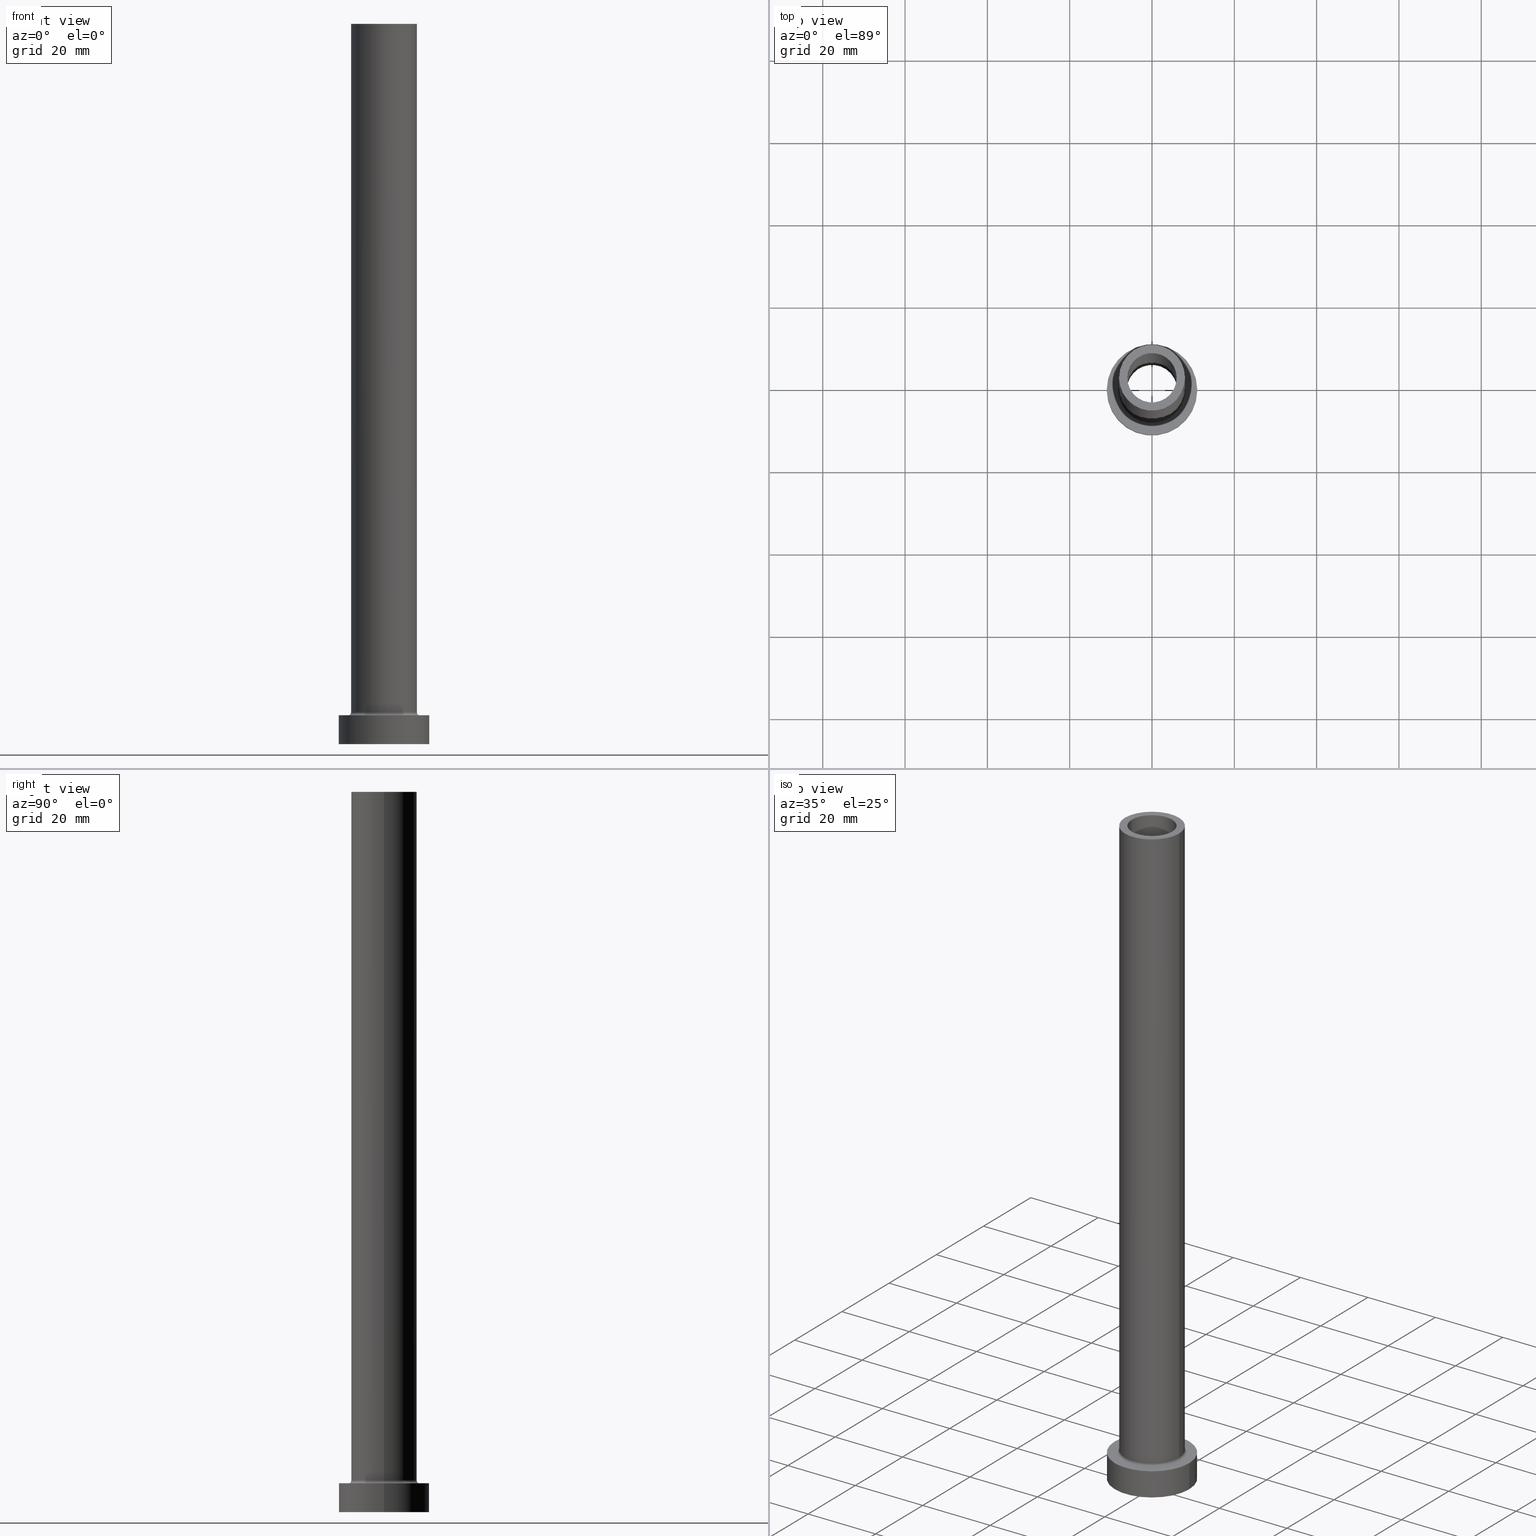
[diagram: canonical four-view strip — front | top / right | iso, engineering-drawing reading convention]
A machine part, canonical four-view strip (front | top / right | iso — engineering-drawing reading convention). The complete STEP part file that produces these views, byte-faithful:
ISO-10303-21;
HEADER;
FILE_DESCRIPTION (( 'STEP AP203' ),
    '1' );
FILE_NAME ('0280.STEP',
    '2023-02-13T07:42:17',
    ( '' ),
    ( '' ),
    'SwSTEP 2.0',
    'SolidWorks 2019',
    '' );
FILE_SCHEMA (( 'CONFIG_CONTROL_DESIGN' ));
ENDSEC;

DATA;
#1 = ORIENTED_EDGE ( 'NONE', *, *, #388, .T. ) ;
#2 = EDGE_CURVE ( 'NONE', #266, #155, #386, .T. ) ;
#3 = AXIS2_PLACEMENT_3D ( 'NONE', #35, #312, #212 ) ;
#4 = CIRCLE ( 'NONE', #304, 0.7000000000000000666 ) ;
#5 = SECURITY_CLASSIFICATION ( '', '', #391 ) ;
#6 = ORIENTED_EDGE ( 'NONE', *, *, #67, .F. ) ;
#7 = CIRCLE ( 'NONE', #276, 0.6999999999999992895 ) ;
#8 = ORIENTED_EDGE ( 'NONE', *, *, #94, .T. ) ;
#9 = VERTEX_POINT ( 'NONE', #226 ) ;
#10 = ORIENTED_EDGE ( 'NONE', *, *, #458, .F. ) ;
#11 = CARTESIAN_POINT ( 'NONE',  ( -6.000000000000000888, 0.000000000000000000, 130.0000000000000000 ) ) ;
#12 = DIRECTION ( 'NONE',  ( 0.000000000000000000, 0.000000000000000000, 1.000000000000000000 ) ) ;
#13 = CARTESIAN_POINT ( 'NONE',  ( 8.699999999999999289, 0.000000000000000000, 7.000000000000006217 ) ) ;
#14 = PRODUCT ( '0280', '0280', '', ( #98 ) ) ;
#15 = ORIENTED_EDGE ( 'NONE', *, *, #260, .T. ) ;
#16 = APPLICATION_CONTEXT ( 'configuration controlled 3d designs of mechanical parts and assemblies' ) ;
#17 = CARTESIAN_POINT ( 'NONE',  ( 0.000000000000000000, 0.000000000000000000, 7.000000000000000000 ) ) ;
#18 = DIRECTION ( 'NONE',  ( -1.000000000000000000, 1.224646799147353207E-16, 0.000000000000000000 ) ) ;
#19 = DIRECTION ( 'NONE',  ( 0.000000000000000000, 0.000000000000000000, 1.000000000000000000 ) ) ;
#20 = EDGE_CURVE ( 'NONE', #51, #336, #442, .T. ) ;
#21 = FACE_OUTER_BOUND ( 'NONE', #437, .T. ) ;
#22 =( NAMED_UNIT ( * ) PLANE_ANGLE_UNIT ( ) SI_UNIT ( $, .RADIAN. ) );
#23 = DIRECTION ( 'NONE',  ( 1.000000000000000000, 0.000000000000000000, 0.000000000000000000 ) ) ;
#24 = ADVANCED_FACE ( 'NONE', ( #198 ), #412, .T. ) ;
#25 = CARTESIAN_POINT ( 'NONE',  ( 0.000000000000000000, 0.000000000000000000, 7.700000000000012612 ) ) ;
#26 = CC_DESIGN_PERSON_AND_ORGANIZATION_ASSIGNMENT ( #109, #453, ( #5 ) ) ;
#27 = DIRECTION ( 'NONE',  ( -0.000000000000000000, -0.000000000000000000, -1.000000000000000000 ) ) ;
#28 = PERSON_AND_ORGANIZATION ( #37, #313 ) ;
#29 = FACE_OUTER_BOUND ( 'NONE', #222, .T. ) ;
#30 = APPROVAL_STATUS ( 'not_yet_approved' ) ;
#31 = CARTESIAN_POINT ( 'NONE',  ( 0.000000000000000000, 0.000000000000000000, 147.3948268171890845 ) ) ;
#32 = APPROVAL_STATUS ( 'not_yet_approved' ) ;
#33 = AXIS2_PLACEMENT_3D ( 'NONE', #156, #439, #85 ) ;
#34 = DIRECTION ( 'NONE',  ( 1.000000000000000000, 0.000000000000000000, -0.000000000000000000 ) ) ;
#35 = CARTESIAN_POINT ( 'NONE',  ( 0.000000000000000000, 0.000000000000000000, 7.700000000000012612 ) ) ;
#36 = DATE_AND_TIME ( #285, #390 ) ;
#37 = PERSON ( 'NEUR�EN�', 'NEUR�EN�', 'NEUR�EN�', ('NEUR�EN�'), ('NEUR�EN�'), ('NEUR�EN�') ) ;
#38 = ADVANCED_FACE ( 'NONE', ( #371, #21 ), #259, .T. ) ;
#39 = CC_DESIGN_DATE_AND_TIME_ASSIGNMENT ( #140, #450, ( #5 ) ) ;
#40 = APPROVAL_PERSON_ORGANIZATION ( #99, #247, #65 ) ;
#41 = EDGE_LOOP ( 'NONE', ( #370, #197 ) ) ;
#42 = LINE ( 'NONE', #428, #432 ) ;
#43 = ORIENTED_EDGE ( 'NONE', *, *, #60, .T. ) ;
#44 = ORIENTED_EDGE ( 'NONE', *, *, #105, .T. ) ;
#45 = EDGE_LOOP ( 'NONE', ( #369, #339 ) ) ;
#46 = CARTESIAN_POINT ( 'NONE',  ( 0.000000000000000000, 0.000000000000000000, 175.0000000000000284 ) ) ;
#47 = CC_DESIGN_APPROVAL ( #415, ( #5 ) ) ;
#48 = CIRCLE ( 'NONE', #457, 8.000000000000000000 ) ;
#49 = ORIENTED_EDGE ( 'NONE', *, *, #429, .T. ) ;
#50 = DIRECTION ( 'NONE',  ( 1.000000000000000000, 0.000000000000000000, 0.000000000000000000 ) ) ;
#51 = VERTEX_POINT ( 'NONE', #11 ) ;
#52 = CARTESIAN_POINT ( 'NONE',  ( 0.000000000000000000, 0.000000000000000000, 130.0000000000000000 ) ) ;
#53 = ORIENTED_EDGE ( 'NONE', *, *, #90, .T. ) ;
#54 = EDGE_CURVE ( 'NONE', #163, #155, #161, .T. ) ;
#55 = DIRECTION ( 'NONE',  ( 1.000000000000000000, 0.000000000000000000, 0.000000000000000000 ) ) ;
#56 = AXIS2_PLACEMENT_3D ( 'NONE', #451, #359, #97 ) ;
#57 = AXIS2_PLACEMENT_3D ( 'NONE', #248, #252, #243 ) ;
#58 = VECTOR ( 'NONE', #399, 1000.000000000000000 ) ;
#59 = CARTESIAN_POINT ( 'NONE',  ( -6.150000000000000355, 0.000000000000000000, 147.3948268171890845 ) ) ;
#60 = EDGE_CURVE ( 'NONE', #120, #9, #88, .T. ) ;
#61 = CARTESIAN_POINT ( 'NONE',  ( 6.000000000000000888, 7.347880794884120722E-16, 130.0000000000000000 ) ) ;
#62 = DIRECTION ( 'NONE',  ( -1.000000000000000000, 0.000000000000000000, 0.000000000000000000 ) ) ;
#63 = CYLINDRICAL_SURFACE ( 'NONE', #195, 8.000000000000000000 ) ;
#64 = CIRCLE ( 'NONE', #180, 11.00000000000000000 ) ;
#65 = APPROVAL_ROLE ( '' ) ;
#66 = APPROVAL_ROLE ( '' ) ;
#67 = EDGE_CURVE ( 'NONE', #196, #187, #7, .T. ) ;
#68 = CC_DESIGN_PERSON_AND_ORGANIZATION_ASSIGNMENT ( #455, #215, ( #14 ) ) ;
#69 = CARTESIAN_POINT ( 'NONE',  ( -8.699999999999999289, 1.065442715258197248E-15, 7.000000000000006217 ) ) ;
#70 = VECTOR ( 'NONE', #77, 1000.000000000000000 ) ;
#71 =( GEOMETRIC_REPRESENTATION_CONTEXT ( 3 ) GLOBAL_UNCERTAINTY_ASSIGNED_CONTEXT ( ( #357 ) ) GLOBAL_UNIT_ASSIGNED_CONTEXT ( ( #379, #22, #309 ) ) REPRESENTATION_CONTEXT ( 'NONE', 'WORKASPACE' ) );
#72 = DATE_AND_TIME ( #101, #107 ) ;
#73 = CARTESIAN_POINT ( 'NONE',  ( 0.000000000000000000, 0.000000000000000000, 0.000000000000000000 ) ) ;
#74 = ADVANCED_FACE ( 'NONE', ( #29 ), #63, .T. ) ;
#75 = CC_DESIGN_DATE_AND_TIME_ASSIGNMENT ( #173, #323, ( #381 ) ) ;
#76 = DIRECTION ( 'NONE',  ( 1.000000000000000000, 0.000000000000000000, 0.000000000000000000 ) ) ;
#77 = DIRECTION ( 'NONE',  ( -0.000000000000000000, -0.000000000000000000, -1.000000000000000000 ) ) ;
#78 = AXIS2_PLACEMENT_3D ( 'NONE', #73, #205, #34 ) ;
#79 = CIRCLE ( 'NONE', #267, 8.000000000000000000 ) ;
#80 = ORIENTED_EDGE ( 'NONE', *, *, #449, .T. ) ;
#81 = ORIENTED_EDGE ( 'NONE', *, *, #324, .T. ) ;
#82 = ORIENTED_EDGE ( 'NONE', *, *, #54, .T. ) ;
#83 = VERTEX_POINT ( 'NONE', #272 ) ;
#84 = ORIENTED_EDGE ( 'NONE', *, *, #385, .F. ) ;
#85 = DIRECTION ( 'NONE',  ( 1.000000000000000000, 0.000000000000000000, 0.000000000000000000 ) ) ;
#86 = ORIENTED_EDGE ( 'NONE', *, *, #176, .T. ) ;
#87 = CC_DESIGN_SECURITY_CLASSIFICATION ( #5, ( #322 ) ) ;
#88 = LINE ( 'NONE', #59, #283 ) ;
#89 = CARTESIAN_POINT ( 'NONE',  ( 0.000000000000000000, 0.000000000000000000, 175.0000000000000284 ) ) ;
#90 = EDGE_CURVE ( 'NONE', #83, #200, #48, .T. ) ;
#91 = DIRECTION ( 'NONE',  ( 0.000000000000000000, 0.000000000000000000, 1.000000000000000000 ) ) ;
#92 = DIRECTION ( 'NONE',  ( -0.000000000000000000, -0.000000000000000000, -1.000000000000000000 ) ) ;
#93 = CIRCLE ( 'NONE', #333, 6.000000000000000888 ) ;
#94 = EDGE_CURVE ( 'NONE', #200, #83, #79, .T. ) ;
#95 = FACE_OUTER_BOUND ( 'NONE', #253, .T. ) ;
#96 = DIRECTION ( 'NONE',  ( 0.000000000000000000, 0.000000000000000000, -1.000000000000000000 ) ) ;
#97 = DIRECTION ( 'NONE',  ( 1.000000000000000000, 0.000000000000000000, 0.000000000000000000 ) ) ;
#98 = MECHANICAL_CONTEXT ( 'NONE', #104, 'mechanical' ) ;
#99 = PERSON_AND_ORGANIZATION ( #37, #313 ) ;
#100 = FACE_OUTER_BOUND ( 'NONE', #329, .T. ) ;
#101 = CALENDAR_DATE ( 2023, 13, 2 ) ;
#102 = PERSON_AND_ORGANIZATION ( #37, #313 ) ;
#103 = CARTESIAN_POINT ( 'NONE',  ( 8.000000000000000000, 9.797174393178823685E-16, 175.0000000000000284 ) ) ;
#104 = APPLICATION_CONTEXT ( 'configuration controlled 3d designs of mechanical parts and assemblies' ) ;
#105 = EDGE_CURVE ( 'NONE', #427, #305, #361, .T. ) ;
#106 = VECTOR ( 'NONE', #218, 1000.000000000000000 ) ;
#107 = LOCAL_TIME ( 8, 42, 17.00000000000000000, #318 ) ;
#108 = DIRECTION ( 'NONE',  ( 1.000000000000000000, 0.000000000000000000, 0.000000000000000000 ) ) ;
#109 = PERSON_AND_ORGANIZATION ( #37, #313 ) ;
#110 = ORIENTED_EDGE ( 'NONE', *, *, #60, .F. ) ;
#111 = CARTESIAN_POINT ( 'NONE',  ( 0.000000000000000000, 0.000000000000000000, 0.000000000000000000 ) ) ;
#112 = LINE ( 'NONE', #395, #106 ) ;
#113 = CARTESIAN_POINT ( 'NONE',  ( 8.000000000000000000, 9.797174393178823685E-16, 175.0000000000000284 ) ) ;
#114 = ORIENTED_EDGE ( 'NONE', *, *, #94, .F. ) ;
#115 = VERTEX_POINT ( 'NONE', #13 ) ;
#116 = TOROIDAL_SURFACE ( 'NONE', #3, 8.699999999999999289, 0.6999999999999999556 ) ;
#117 = APPROVAL_PERSON_ORGANIZATION ( #454, #126, #321 ) ;
#118 = ORIENTED_EDGE ( 'NONE', *, *, #234, .F. ) ;
#119 = ORIENTED_EDGE ( 'NONE', *, *, #292, .T. ) ;
#120 = VERTEX_POINT ( 'NONE', #256 ) ;
#121 = ORIENTED_EDGE ( 'NONE', *, *, #90, .F. ) ;
#122 = DIRECTION ( 'NONE',  ( 1.000000000000000000, 0.000000000000000000, -0.000000000000000000 ) ) ;
#123 = EDGE_CURVE ( 'NONE', #83, #196, #364, .T. ) ;
#124 = ORIENTED_EDGE ( 'NONE', *, *, #234, .T. ) ;
#125 = AXIS2_PLACEMENT_3D ( 'NONE', #273, #448, #416 ) ;
#126 = APPROVAL ( #32, 'NEUR�EN�' ) ;
#127 = CARTESIAN_POINT ( 'NONE',  ( 8.000000000000000000, 9.797174393178823685E-16, 7.700000000000012612 ) ) ;
#128 = DIRECTION ( 'NONE',  ( 1.000000000000000000, 0.000000000000000000, 0.000000000000000000 ) ) ;
#129 = DIRECTION ( 'NONE',  ( 0.000000000000000000, 0.000000000000000000, -1.000000000000000000 ) ) ;
#130 = CARTESIAN_POINT ( 'NONE',  ( 0.000000000000000000, 0.000000000000000000, 7.000000000000000000 ) ) ;
#131 = DIRECTION ( 'NONE',  ( 1.000000000000000000, 0.000000000000000000, 0.000000000000000000 ) ) ;
#132 = AXIS2_PLACEMENT_3D ( 'NONE', #414, #383, #62 ) ;
#133 = CARTESIAN_POINT ( 'NONE',  ( 0.000000000000000000, 0.000000000000000000, 130.0000000000000000 ) ) ;
#134 = APPROVAL_PERSON_ORGANIZATION ( #387, #415, #66 ) ;
#135 = PRODUCT_RELATED_PRODUCT_CATEGORY ( 'detail', '', ( #14 ) ) ;
#136 = CARTESIAN_POINT ( 'NONE',  ( 6.000000000000000888, 7.347880794884120722E-16, 175.0000000000000284 ) ) ;
#137 = COORDINATED_UNIVERSAL_TIME_OFFSET ( 1, 0, .AHEAD. ) ;
#138 = FACE_OUTER_BOUND ( 'NONE', #179, .T. ) ;
#139 = ADVANCED_FACE ( 'NONE', ( #149 ), #116, .F. ) ;
#140 = DATE_AND_TIME ( #315, #214 ) ;
#141 = AXIS2_PLACEMENT_3D ( 'NONE', #111, #228, #50 ) ;
#142 = PERSON_AND_ORGANIZATION ( #37, #313 ) ;
#143 = DATE_AND_TIME ( #358, #374 ) ;
#144 = ADVANCED_FACE ( 'NONE', ( #100 ), #213, .F. ) ;
#145 = CALENDAR_DATE ( 2023, 13, 2 ) ;
#146 = FACE_BOUND ( 'NONE', #41, .T. ) ;
#147 = AXIS2_PLACEMENT_3D ( 'NONE', #237, #96, #308 ) ;
#148 = CARTESIAN_POINT ( 'NONE',  ( 0.000000000000000000, 0.000000000000000000, 175.0000000000000284 ) ) ;
#149 = FACE_OUTER_BOUND ( 'NONE', #300, .T. ) ;
#150 = CARTESIAN_POINT ( 'NONE',  ( -11.00000000000000000, 0.000000000000000000, 0.000000000000000000 ) ) ;
#151 = EDGE_CURVE ( 'NONE', #305, #9, #311, .T. ) ;
#152 = CARTESIAN_POINT ( 'NONE',  ( 0.000000000000000000, 0.000000000000000000, 175.0000000000000284 ) ) ;
#153 = ORIENTED_EDGE ( 'NONE', *, *, #277, .T. ) ;
#154 = VECTOR ( 'NONE', #410, 1000.000000000000000 ) ;
#155 = VERTEX_POINT ( 'NONE', #159 ) ;
#156 = CARTESIAN_POINT ( 'NONE',  ( 0.000000000000000000, 0.000000000000000000, 0.000000000000000000 ) ) ;
#157 = ADVANCED_FACE ( 'NONE', ( #199 ), #413, .F. ) ;
#158 = ORIENTED_EDGE ( 'NONE', *, *, #260, .F. ) ;
#159 = CARTESIAN_POINT ( 'NONE',  ( 11.00000000000000000, 1.347111479062088405E-15, 0.000000000000000000 ) ) ;
#160 = ORIENTED_EDGE ( 'NONE', *, *, #458, .T. ) ;
#161 = LINE ( 'NONE', #301, #154 ) ;
#162 = CARTESIAN_POINT ( 'NONE',  ( 0.000000000000000000, 0.000000000000000000, 7.000000000000000000 ) ) ;
#163 = VERTEX_POINT ( 'NONE', #340 ) ;
#164 = CIRCLE ( 'NONE', #325, 8.000000000000000000 ) ;
#165 = DIRECTION ( 'NONE',  ( 0.000000000000000000, 0.000000000000000000, 1.000000000000000000 ) ) ;
#166 = DIRECTION ( 'NONE',  ( -0.000000000000000000, -0.000000000000000000, -1.000000000000000000 ) ) ;
#167 = DIRECTION ( 'NONE',  ( 0.000000000000000000, 0.000000000000000000, 1.000000000000000000 ) ) ;
#168 = CARTESIAN_POINT ( 'NONE',  ( -11.00000000000000000, 0.000000000000000000, 7.000000000000000000 ) ) ;
#169 = DIRECTION ( 'NONE',  ( 1.224646799147353207E-16, 1.000000000000000000, -0.000000000000000000 ) ) ;
#170 = CIRCLE ( 'NONE', #424, 11.00000000000000000 ) ;
#171 = DIRECTION ( 'NONE',  ( 1.000000000000000000, 0.000000000000000000, 0.000000000000000000 ) ) ;
#172 = FACE_OUTER_BOUND ( 'NONE', #396, .T. ) ;
#173 = DATE_AND_TIME ( #145, #210 ) ;
#174 = COORDINATED_UNIVERSAL_TIME_OFFSET ( 1, 0, .AHEAD. ) ;
#175 = AXIS2_PLACEMENT_3D ( 'NONE', #31, #319, #430 ) ;
#176 = EDGE_CURVE ( 'NONE', #120, #427, #353, .T. ) ;
#177 = COORDINATED_UNIVERSAL_TIME_OFFSET ( 1, 0, .AHEAD. ) ;
#178 = DIRECTION ( 'NONE',  ( 0.000000000000000000, 0.000000000000000000, 1.000000000000000000 ) ) ;
#179 = EDGE_LOOP ( 'NONE', ( #190, #344, #43, #153 ) ) ;
#180 = AXIS2_PLACEMENT_3D ( 'NONE', #162, #91, #55 ) ;
#181 = CC_DESIGN_APPROVAL ( #247, ( #381 ) ) ;
#182 = CARTESIAN_POINT ( 'NONE',  ( -8.000000000000000000, 0.000000000000000000, 175.0000000000000284 ) ) ;
#183 = AXIS2_PLACEMENT_3D ( 'NONE', #345, #167, #128 ) ;
#184 = FACE_OUTER_BOUND ( 'NONE', #221, .T. ) ;
#185 = ORIENTED_EDGE ( 'NONE', *, *, #2, .F. ) ;
#186 = CC_DESIGN_PERSON_AND_ORGANIZATION_ASSIGNMENT ( #142, #209, ( #381 ) ) ;
#187 = VERTEX_POINT ( 'NONE', #69 ) ;
#188 = ORIENTED_EDGE ( 'NONE', *, *, #419, .F. ) ;
#189 = ORIENTED_EDGE ( 'NONE', *, *, #419, .T. ) ;
#190 = ORIENTED_EDGE ( 'NONE', *, *, #105, .F. ) ;
#191 = ORIENTED_EDGE ( 'NONE', *, *, #123, .F. ) ;
#192 = CIRCLE ( 'NONE', #242, 8.699999999999999289 ) ;
#193 = ORIENTED_EDGE ( 'NONE', *, *, #2, .T. ) ;
#194 = DIRECTION ( 'NONE',  ( 0.000000000000000000, 0.000000000000000000, 1.000000000000000000 ) ) ;
#195 = AXIS2_PLACEMENT_3D ( 'NONE', #316, #166, #281 ) ;
#196 = VERTEX_POINT ( 'NONE', #423 ) ;
#197 = ORIENTED_EDGE ( 'NONE', *, *, #303, .T. ) ;
#198 = FACE_OUTER_BOUND ( 'NONE', #367, .T. ) ;
#199 = FACE_OUTER_BOUND ( 'NONE', #409, .T. ) ;
#200 = VERTEX_POINT ( 'NONE', #103 ) ;
#201 = DIRECTION ( 'NONE',  ( 0.000000000000000000, 0.000000000000000000, 1.000000000000000000 ) ) ;
#202 = CARTESIAN_POINT ( 'NONE',  ( 0.000000000000000000, 0.000000000000000000, 7.700000000000012612 ) ) ;
#203 = CC_DESIGN_PERSON_AND_ORGANIZATION_ASSIGNMENT ( #28, #425, ( #322 ) ) ;
#204 = CARTESIAN_POINT ( 'NONE',  ( 6.150000000000000355, 7.531577814756222064E-16, 0.000000000000000000 ) ) ;
#205 = DIRECTION ( 'NONE',  ( 0.000000000000000000, 0.000000000000000000, 1.000000000000000000 ) ) ;
#206 = DIRECTION ( 'NONE',  ( -0.000000000000000000, -0.000000000000000000, -1.000000000000000000 ) ) ;
#207 = ADVANCED_FACE ( 'NONE', ( #146, #426 ), #295, .F. ) ;
#208 = CIRCLE ( 'NONE', #456, 6.150000000000000355 ) ;
#209 = PERSON_AND_ORGANIZATION_ROLE ( 'creator' ) ;
#210 = LOCAL_TIME ( 8, 42, 17.00000000000000000, #177 ) ;
#211 = DESIGN_CONTEXT ( 'detailed design', #16, 'design' ) ;
#212 = DIRECTION ( 'NONE',  ( 1.000000000000000000, 0.000000000000000000, 0.000000000000000000 ) ) ;
#213 = TOROIDAL_SURFACE ( 'NONE', #219, 8.699999999999999289, 0.6999999999999999556 ) ;
#214 = LOCAL_TIME ( 8, 42, 17.00000000000000000, #354 ) ;
#215 = PERSON_AND_ORGANIZATION_ROLE ( 'design_owner' ) ;
#216 = DIRECTION ( 'NONE',  ( 0.000000000000000000, 0.000000000000000000, -1.000000000000000000 ) ) ;
#217 = EDGE_CURVE ( 'NONE', #265, #51, #112, .T. ) ;
#218 = DIRECTION ( 'NONE',  ( 0.000000000000000000, 0.000000000000000000, -1.000000000000000000 ) ) ;
#219 = AXIS2_PLACEMENT_3D ( 'NONE', #461, #224, #231 ) ;
#220 = DIRECTION ( 'NONE',  ( 0.000000000000000000, 0.000000000000000000, -1.000000000000000000 ) ) ;
#221 = EDGE_LOOP ( 'NONE', ( #185, #332 ) ) ;
#222 = EDGE_LOOP ( 'NONE', ( #233, #121, #328, #330 ) ) ;
#223 = ADVANCED_FACE ( 'NONE', ( #365, #184 ), #327, .F. ) ;
#224 = DIRECTION ( 'NONE',  ( 0.000000000000000000, 0.000000000000000000, 1.000000000000000000 ) ) ;
#225 = ORIENTED_EDGE ( 'NONE', *, *, #385, .T. ) ;
#226 = CARTESIAN_POINT ( 'NONE',  ( -6.150000000000000355, 0.000000000000000000, 0.000000000000000000 ) ) ;
#227 = AXIS2_PLACEMENT_3D ( 'NONE', #249, #178, #362 ) ;
#228 = DIRECTION ( 'NONE',  ( -0.000000000000000000, -0.000000000000000000, -1.000000000000000000 ) ) ;
#229 = EDGE_LOOP ( 'NONE', ( #160, #15, #401, #294 ) ) ;
#230 = EDGE_LOOP ( 'NONE', ( #1, #225 ) ) ;
#231 = DIRECTION ( 'NONE',  ( 1.000000000000000000, 0.000000000000000000, 0.000000000000000000 ) ) ;
#232 = CARTESIAN_POINT ( 'NONE',  ( 0.000000000000000000, 0.000000000000000000, 175.0000000000000284 ) ) ;
#233 = ORIENTED_EDGE ( 'NONE', *, *, #292, .F. ) ;
#234 = EDGE_CURVE ( 'NONE', #435, #115, #4, .T. ) ;
#235 = CIRCLE ( 'NONE', #447, 6.000000000000000888 ) ;
#236 = DIRECTION ( 'NONE',  ( 0.000000000000000000, 0.000000000000000000, 1.000000000000000000 ) ) ;
#237 = CARTESIAN_POINT ( 'NONE',  ( 0.000000000000000000, 0.000000000000000000, 147.3948268171890845 ) ) ;
#238 = EDGE_CURVE ( 'NONE', #155, #266, #372, .T. ) ;
#239 = DIRECTION ( 'NONE',  ( 1.000000000000000000, 0.000000000000000000, 0.000000000000000000 ) ) ;
#240 = CARTESIAN_POINT ( 'NONE',  ( -8.699999999999999289, 1.065442715258197248E-15, 7.700000000000012612 ) ) ;
#241 = CARTESIAN_POINT ( 'NONE',  ( 8.699999999999999289, 0.000000000000000000, 7.700000000000012612 ) ) ;
#242 = AXIS2_PLACEMENT_3D ( 'NONE', #17, #440, #23 ) ;
#243 = DIRECTION ( 'NONE',  ( 1.000000000000000000, 0.000000000000000000, 0.000000000000000000 ) ) ;
#244 = CC_DESIGN_APPROVAL ( #126, ( #322 ) ) ;
#245 = AXIS2_PLACEMENT_3D ( 'NONE', #52, #269, #307 ) ;
#246 = PERSON_AND_ORGANIZATION_ROLE ( 'creator' ) ;
#247 = APPROVAL ( #30, 'NEUR�EN�' ) ;
#248 = CARTESIAN_POINT ( 'NONE',  ( 0.000000000000000000, 0.000000000000000000, 0.000000000000000000 ) ) ;
#249 = CARTESIAN_POINT ( 'NONE',  ( 0.000000000000000000, 0.000000000000000000, 130.0000000000000000 ) ) ;
#250 = CIRCLE ( 'NONE', #347, 8.000000000000000000 ) ;
#251 = CARTESIAN_POINT ( 'NONE',  ( 0.000000000000000000, 0.000000000000000000, 175.0000000000000284 ) ) ;
#252 = DIRECTION ( 'NONE',  ( 0.000000000000000000, 0.000000000000000000, 1.000000000000000000 ) ) ;
#253 = EDGE_LOOP ( 'NONE', ( #86, #44, #263, #110 ) ) ;
#254 = ADVANCED_FACE ( 'NONE', ( #138 ), #356, .F. ) ;
#255 = CIRCLE ( 'NONE', #389, 8.699999999999999289 ) ;
#256 = CARTESIAN_POINT ( 'NONE',  ( -6.150000000000000355, 0.000000000000000000, 130.0000000000000000 ) ) ;
#257 = AXIS2_PLACEMENT_3D ( 'NONE', #348, #262, #404 ) ;
#258 = EDGE_LOOP ( 'NONE', ( #326, #298, #49, #193 ) ) ;
#259 = PLANE ( 'NONE',  #349 ) ;
#260 = EDGE_CURVE ( 'NONE', #438, #336, #42, .T. ) ;
#261 = ORIENTED_EDGE ( 'NONE', *, *, #270, .F. ) ;
#262 = DIRECTION ( 'NONE',  ( -0.000000000000000000, -0.000000000000000000, -1.000000000000000000 ) ) ;
#263 = ORIENTED_EDGE ( 'NONE', *, *, #151, .T. ) ;
#264 = DIRECTION ( 'NONE',  ( -1.000000000000000000, 0.000000000000000000, 0.000000000000000000 ) ) ;
#265 = VERTEX_POINT ( 'NONE', #460 ) ;
#266 = VERTEX_POINT ( 'NONE', #150 ) ;
#267 = AXIS2_PLACEMENT_3D ( 'NONE', #251, #392, #76 ) ;
#268 = FACE_OUTER_BOUND ( 'NONE', #258, .T. ) ;
#269 = DIRECTION ( 'NONE',  ( 0.000000000000000000, 0.000000000000000000, 1.000000000000000000 ) ) ;
#270 = EDGE_CURVE ( 'NONE', #438, #265, #235, .T. ) ;
#271 = DIRECTION ( 'NONE',  ( 1.000000000000000000, 0.000000000000000000, 0.000000000000000000 ) ) ;
#272 = CARTESIAN_POINT ( 'NONE',  ( -8.000000000000000000, 0.000000000000000000, 175.0000000000000284 ) ) ;
#273 = CARTESIAN_POINT ( 'NONE',  ( 0.000000000000000000, 0.000000000000000000, 7.000000000000000000 ) ) ;
#274 = CIRCLE ( 'NONE', #33, 6.150000000000000355 ) ;
#275 = CARTESIAN_POINT ( 'NONE',  ( 0.000000000000000000, 0.000000000000000000, 130.0000000000000000 ) ) ;
#276 = AXIS2_PLACEMENT_3D ( 'NONE', #240, #169, #18 ) ;
#277 = EDGE_CURVE ( 'NONE', #9, #305, #274, .T. ) ;
#278 = DIRECTION ( 'NONE',  ( 1.000000000000000000, 0.000000000000000000, 0.000000000000000000 ) ) ;
#279 = CARTESIAN_POINT ( 'NONE',  ( 0.000000000000000000, 0.000000000000000000, 7.000000000000000000 ) ) ;
#280 = APPROVAL_DATE_TIME ( #143, #415 ) ;
#281 = DIRECTION ( 'NONE',  ( -1.000000000000000000, 0.000000000000000000, 0.000000000000000000 ) ) ;
#282 = SHAPE_DEFINITION_REPRESENTATION ( #338, #335 ) ;
#283 = VECTOR ( 'NONE', #422, 1000.000000000000000 ) ;
#284 = ADVANCED_FACE ( 'NONE', ( #172 ), #420, .T. ) ;
#285 = CALENDAR_DATE ( 2023, 13, 2 ) ;
#286 = DIRECTION ( 'NONE',  ( 0.000000000000000000, 0.000000000000000000, -1.000000000000000000 ) ) ;
#287 = DIRECTION ( 'NONE',  ( 0.000000000000000000, 0.000000000000000000, 1.000000000000000000 ) ) ;
#288 = CARTESIAN_POINT ( 'NONE',  ( -11.00000000000000000, 0.000000000000000000, 7.000000000000000000 ) ) ;
#289 = APPROVAL_DATE_TIME ( #72, #126 ) ;
#290 = VECTOR ( 'NONE', #92, 1000.000000000000000 ) ;
#291 = DIRECTION ( 'NONE',  ( 0.000000000000000000, -1.000000000000000000, 0.000000000000000000 ) ) ;
#292 = EDGE_CURVE ( 'NONE', #200, #435, #317, .T. ) ;
#293 = CLOSED_SHELL ( 'NONE', ( #444, #320, #139, #24, #284, #341, #405, #223, #74, #38, #144, #254, #207, #157 ) ) ;
#294 = ORIENTED_EDGE ( 'NONE', *, *, #217, .F. ) ;
#295 = PLANE ( 'NONE',  #227 ) ;
#296 = DIRECTION ( 'NONE',  ( -1.000000000000000000, 0.000000000000000000, 0.000000000000000000 ) ) ;
#297 = AXIS2_PLACEMENT_3D ( 'NONE', #279, #27, #296 ) ;
#298 = ORIENTED_EDGE ( 'NONE', *, *, #449, .F. ) ;
#299 = VERTEX_POINT ( 'NONE', #288 ) ;
#300 = EDGE_LOOP ( 'NONE', ( #363, #331, #403, #118 ) ) ;
#301 = CARTESIAN_POINT ( 'NONE',  ( 11.00000000000000000, 1.347111479062088405E-15, 7.000000000000000000 ) ) ;
#302 = DIRECTION ( 'NONE',  ( 1.000000000000000000, 0.000000000000000000, 0.000000000000000000 ) ) ;
#303 = EDGE_CURVE ( 'NONE', #336, #51, #93, .T. ) ;
#304 = AXIS2_PLACEMENT_3D ( 'NONE', #241, #291, #286 ) ;
#305 = VERTEX_POINT ( 'NONE', #204 ) ;
#306 = FACE_OUTER_BOUND ( 'NONE', #229, .T. ) ;
#307 = DIRECTION ( 'NONE',  ( 1.000000000000000000, 0.000000000000000000, 0.000000000000000000 ) ) ;
#308 = DIRECTION ( 'NONE',  ( -1.000000000000000000, 0.000000000000000000, 0.000000000000000000 ) ) ;
#309 =( NAMED_UNIT ( * ) SI_UNIT ( $, .STERADIAN. ) SOLID_ANGLE_UNIT ( ) );
#310 = CC_DESIGN_PERSON_AND_ORGANIZATION_ASSIGNMENT ( #102, #246, ( #322 ) ) ;
#311 = CIRCLE ( 'NONE', #141, 6.150000000000000355 ) ;
#312 = DIRECTION ( 'NONE',  ( 0.000000000000000000, 0.000000000000000000, 1.000000000000000000 ) ) ;
#313 = ORGANIZATION ( 'NEUR�EN�', 'NEUR�EN�', '' ) ;
#314 = PLANE ( 'NONE',  #125 ) ;
#315 = CALENDAR_DATE ( 2023, 13, 2 ) ;
#316 = CARTESIAN_POINT ( 'NONE',  ( 0.000000000000000000, 0.000000000000000000, 175.0000000000000284 ) ) ;
#317 = LINE ( 'NONE', #113, #70 ) ;
#318 = COORDINATED_UNIVERSAL_TIME_OFFSET ( 1, 0, .AHEAD. ) ;
#319 = DIRECTION ( 'NONE',  ( 0.000000000000000000, 0.000000000000000000, -1.000000000000000000 ) ) ;
#320 = ADVANCED_FACE ( 'NONE', ( #95 ), #382, .F. ) ;
#321 = APPROVAL_ROLE ( '' ) ;
#322 = PRODUCT_DEFINITION_FORMATION_WITH_SPECIFIED_SOURCE ( 'LIBOVOLN�', '', #14, .NOT_KNOWN. ) ;
#323 = DATE_TIME_ROLE ( 'creation_date' ) ;
#324 = EDGE_CURVE ( 'NONE', #163, #299, #170, .T. ) ;
#325 = AXIS2_PLACEMENT_3D ( 'NONE', #25, #201, #131 ) ;
#326 = ORIENTED_EDGE ( 'NONE', *, *, #54, .F. ) ;
#327 = PLANE ( 'NONE',  #78 ) ;
#328 = ORIENTED_EDGE ( 'NONE', *, *, #123, .T. ) ;
#329 = EDGE_LOOP ( 'NONE', ( #6, #188, #124, #84 ) ) ;
#330 = ORIENTED_EDGE ( 'NONE', *, *, #397, .T. ) ;
#331 = ORIENTED_EDGE ( 'NONE', *, *, #67, .T. ) ;
#332 = ORIENTED_EDGE ( 'NONE', *, *, #238, .F. ) ;
#333 = AXIS2_PLACEMENT_3D ( 'NONE', #337, #19, #302 ) ;
#334 = ORIENTED_EDGE ( 'NONE', *, *, #217, .T. ) ;
#335 = ADVANCED_BREP_SHAPE_REPRESENTATION ( '0280', ( #417, #57 ), #71 ) ;
#336 = VERTEX_POINT ( 'NONE', #61 ) ;
#337 = CARTESIAN_POINT ( 'NONE',  ( 0.000000000000000000, 0.000000000000000000, 130.0000000000000000 ) ) ;
#338 = PRODUCT_DEFINITION_SHAPE ( 'NONE', 'NONE',  #381 ) ;
#339 = ORIENTED_EDGE ( 'NONE', *, *, #151, .F. ) ;
#340 = CARTESIAN_POINT ( 'NONE',  ( 11.00000000000000000, 1.347111479062088405E-15, 7.000000000000000000 ) ) ;
#341 = ADVANCED_FACE ( 'NONE', ( #268 ), #445, .T. ) ;
#342 = DIRECTION ( 'NONE',  ( 1.000000000000000000, 0.000000000000000000, 0.000000000000000000 ) ) ;
#343 = CARTESIAN_POINT ( 'NONE',  ( 6.150000000000000355, 7.531577814756222064E-16, 147.3948268171890845 ) ) ;
#344 = ORIENTED_EDGE ( 'NONE', *, *, #436, .T. ) ;
#345 = CARTESIAN_POINT ( 'NONE',  ( 0.000000000000000000, 0.000000000000000000, 0.000000000000000000 ) ) ;
#346 = CARTESIAN_POINT ( 'NONE',  ( 0.000000000000000000, 0.000000000000000000, 175.0000000000000284 ) ) ;
#347 = AXIS2_PLACEMENT_3D ( 'NONE', #202, #376, #239 ) ;
#348 = CARTESIAN_POINT ( 'NONE',  ( 0.000000000000000000, 0.000000000000000000, 175.0000000000000284 ) ) ;
#349 = AXIS2_PLACEMENT_3D ( 'NONE', #46, #194, #122 ) ;
#350 = DIRECTION ( 'NONE',  ( -1.000000000000000000, 0.000000000000000000, 0.000000000000000000 ) ) ;
#351 = LINE ( 'NONE', #168, #290 ) ;
#352 = CARTESIAN_POINT ( 'NONE',  ( 0.000000000000000000, 0.000000000000000000, 7.000000000000000000 ) ) ;
#353 = CIRCLE ( 'NONE', #408, 6.150000000000000355 ) ;
#354 = COORDINATED_UNIVERSAL_TIME_OFFSET ( 1, 0, .AHEAD. ) ;
#355 = APPLICATION_PROTOCOL_DEFINITION ( 'international standard', 'config_control_design', 1994, #16 ) ;
#356 = CYLINDRICAL_SURFACE ( 'NONE', #175, 6.150000000000000355 ) ;
#357 = UNCERTAINTY_MEASURE_WITH_UNIT (LENGTH_MEASURE( 1.000000000000000082E-05 ), #379, 'distance_accuracy_value', 'NONE');
#358 = CALENDAR_DATE ( 2023, 13, 2 ) ;
#359 = DIRECTION ( 'NONE',  ( 0.000000000000000000, 0.000000000000000000, 1.000000000000000000 ) ) ;
#360 = APPLICATION_PROTOCOL_DEFINITION ( 'international standard', 'config_control_design', 1994, #104 ) ;
#361 = LINE ( 'NONE', #343, #398 ) ;
#362 = DIRECTION ( 'NONE',  ( 1.000000000000000000, 0.000000000000000000, -0.000000000000000000 ) ) ;
#363 = ORIENTED_EDGE ( 'NONE', *, *, #397, .F. ) ;
#364 = LINE ( 'NONE', #182, #58 ) ;
#365 = FACE_BOUND ( 'NONE', #45, .T. ) ;
#366 = AXIS2_PLACEMENT_3D ( 'NONE', #89, #129, #264 ) ;
#367 = EDGE_LOOP ( 'NONE', ( #114, #119, #189, #191 ) ) ;
#368 = ORIENTED_EDGE ( 'NONE', *, *, #270, .T. ) ;
#369 = ORIENTED_EDGE ( 'NONE', *, *, #277, .F. ) ;
#370 = ORIENTED_EDGE ( 'NONE', *, *, #20, .T. ) ;
#371 = FACE_BOUND ( 'NONE', #431, .T. ) ;
#372 = CIRCLE ( 'NONE', #56, 11.00000000000000000 ) ;
#373 = ORIENTED_EDGE ( 'NONE', *, *, #429, .F. ) ;
#374 = LOCAL_TIME ( 8, 42, 17.00000000000000000, #137 ) ;
#375 = ORIENTED_EDGE ( 'NONE', *, *, #436, .F. ) ;
#376 = DIRECTION ( 'NONE',  ( 0.000000000000000000, 0.000000000000000000, 1.000000000000000000 ) ) ;
#377 = ORIENTED_EDGE ( 'NONE', *, *, #303, .F. ) ;
#378 = CARTESIAN_POINT ( 'NONE',  ( 6.150000000000000355, 7.531577814756222064E-16, 130.0000000000000000 ) ) ;
#379 =( LENGTH_UNIT ( ) NAMED_UNIT ( * ) SI_UNIT ( .MILLI., .METRE. ) );
#380 = DIRECTION ( 'NONE',  ( 0.000000000000000000, 0.000000000000000000, 1.000000000000000000 ) ) ;
#381 = PRODUCT_DEFINITION ( 'NEZN�M�', '', #322, #211 ) ;
#382 = CYLINDRICAL_SURFACE ( 'NONE', #147, 6.150000000000000355 ) ;
#383 = DIRECTION ( 'NONE',  ( -0.000000000000000000, -0.000000000000000000, -1.000000000000000000 ) ) ;
#384 = AXIS2_PLACEMENT_3D ( 'NONE', #346, #443, #350 ) ;
#385 = EDGE_CURVE ( 'NONE', #187, #115, #255, .T. ) ;
#386 = CIRCLE ( 'NONE', #183, 11.00000000000000000 ) ;
#387 = PERSON_AND_ORGANIZATION ( #37, #313 ) ;
#388 = EDGE_CURVE ( 'NONE', #115, #187, #192, .T. ) ;
#389 = AXIS2_PLACEMENT_3D ( 'NONE', #130, #206, #171 ) ;
#390 = LOCAL_TIME ( 8, 42, 17.00000000000000000, #174 ) ;
#391 = SECURITY_CLASSIFICATION_LEVEL ( 'unclassified' ) ;
#392 = DIRECTION ( 'NONE',  ( 0.000000000000000000, 0.000000000000000000, 1.000000000000000000 ) ) ;
#393 = APPROVAL_DATE_TIME ( #36, #247 ) ;
#394 = EDGE_LOOP ( 'NONE', ( #459, #375 ) ) ;
#395 = CARTESIAN_POINT ( 'NONE',  ( -6.000000000000000888, 0.000000000000000000, 175.0000000000000284 ) ) ;
#396 = EDGE_LOOP ( 'NONE', ( #400, #82, #433, #373 ) ) ;
#397 = EDGE_CURVE ( 'NONE', #196, #435, #164, .T. ) ;
#398 = VECTOR ( 'NONE', #216, 1000.000000000000000 ) ;
#399 = DIRECTION ( 'NONE',  ( -0.000000000000000000, -0.000000000000000000, -1.000000000000000000 ) ) ;
#400 = ORIENTED_EDGE ( 'NONE', *, *, #324, .F. ) ;
#401 = ORIENTED_EDGE ( 'NONE', *, *, #20, .F. ) ;
#402 = DIRECTION ( 'NONE',  ( 1.000000000000000000, 0.000000000000000000, 0.000000000000000000 ) ) ;
#403 = ORIENTED_EDGE ( 'NONE', *, *, #388, .F. ) ;
#404 = DIRECTION ( 'NONE',  ( -1.000000000000000000, 0.000000000000000000, 0.000000000000000000 ) ) ;
#405 = ADVANCED_FACE ( 'NONE', ( #446, #411 ), #314, .T. ) ;
#406 = EDGE_LOOP ( 'NONE', ( #80, #81 ) ) ;
#407 = DIRECTION ( 'NONE',  ( 1.000000000000000000, 0.000000000000000000, 0.000000000000000000 ) ) ;
#408 = AXIS2_PLACEMENT_3D ( 'NONE', #275, #380, #407 ) ;
#409 = EDGE_LOOP ( 'NONE', ( #158, #368, #334, #377 ) ) ;
#410 = DIRECTION ( 'NONE',  ( -0.000000000000000000, -0.000000000000000000, -1.000000000000000000 ) ) ;
#411 = FACE_OUTER_BOUND ( 'NONE', #406, .T. ) ;
#412 = CYLINDRICAL_SURFACE ( 'NONE', #257, 8.000000000000000000 ) ;
#413 = CYLINDRICAL_SURFACE ( 'NONE', #366, 6.000000000000000888 ) ;
#414 = CARTESIAN_POINT ( 'NONE',  ( 0.000000000000000000, 0.000000000000000000, 7.000000000000000000 ) ) ;
#415 = APPROVAL ( #421, 'NEUR�EN�' ) ;
#416 = DIRECTION ( 'NONE',  ( 1.000000000000000000, 0.000000000000000000, -0.000000000000000000 ) ) ;
#417 = MANIFOLD_SOLID_BREP ( 'Odebrat vysunut�m4', #293 ) ;
#418 = CYLINDRICAL_SURFACE ( 'NONE', #384, 6.000000000000000888 ) ;
#419 = EDGE_CURVE ( 'NONE', #435, #196, #250, .T. ) ;
#420 = CYLINDRICAL_SURFACE ( 'NONE', #297, 11.00000000000000000 ) ;
#421 = APPROVAL_STATUS ( 'not_yet_approved' ) ;
#422 = DIRECTION ( 'NONE',  ( 0.000000000000000000, 0.000000000000000000, -1.000000000000000000 ) ) ;
#423 = CARTESIAN_POINT ( 'NONE',  ( -8.000000000000000000, 0.000000000000000000, 7.700000000000012612 ) ) ;
#424 = AXIS2_PLACEMENT_3D ( 'NONE', #352, #12, #278 ) ;
#425 = PERSON_AND_ORGANIZATION_ROLE ( 'design_supplier' ) ;
#426 = FACE_OUTER_BOUND ( 'NONE', #394, .T. ) ;
#427 = VERTEX_POINT ( 'NONE', #378 ) ;
#428 = CARTESIAN_POINT ( 'NONE',  ( 6.000000000000000888, 7.347880794884120722E-16, 175.0000000000000284 ) ) ;
#429 = EDGE_CURVE ( 'NONE', #299, #266, #351, .T. ) ;
#430 = DIRECTION ( 'NONE',  ( -1.000000000000000000, 0.000000000000000000, 0.000000000000000000 ) ) ;
#431 = EDGE_LOOP ( 'NONE', ( #10, #261 ) ) ;
#432 = VECTOR ( 'NONE', #220, 1000.000000000000000 ) ;
#433 = ORIENTED_EDGE ( 'NONE', *, *, #238, .T. ) ;
#434 = DIRECTION ( 'NONE',  ( 0.000000000000000000, 0.000000000000000000, 1.000000000000000000 ) ) ;
#435 = VERTEX_POINT ( 'NONE', #127 ) ;
#436 = EDGE_CURVE ( 'NONE', #427, #120, #208, .T. ) ;
#437 = EDGE_LOOP ( 'NONE', ( #53, #8 ) ) ;
#438 = VERTEX_POINT ( 'NONE', #136 ) ;
#439 = DIRECTION ( 'NONE',  ( -0.000000000000000000, -0.000000000000000000, -1.000000000000000000 ) ) ;
#440 = DIRECTION ( 'NONE',  ( -0.000000000000000000, -0.000000000000000000, -1.000000000000000000 ) ) ;
#441 = CIRCLE ( 'NONE', #452, 6.000000000000000888 ) ;
#442 = CIRCLE ( 'NONE', #245, 6.000000000000000888 ) ;
#443 = DIRECTION ( 'NONE',  ( 0.000000000000000000, 0.000000000000000000, -1.000000000000000000 ) ) ;
#444 = ADVANCED_FACE ( 'NONE', ( #306 ), #418, .F. ) ;
#445 = CYLINDRICAL_SURFACE ( 'NONE', #132, 11.00000000000000000 ) ;
#446 = FACE_BOUND ( 'NONE', #230, .T. ) ;
#447 = AXIS2_PLACEMENT_3D ( 'NONE', #152, #434, #402 ) ;
#448 = DIRECTION ( 'NONE',  ( 0.000000000000000000, 0.000000000000000000, 1.000000000000000000 ) ) ;
#449 = EDGE_CURVE ( 'NONE', #299, #163, #64, .T. ) ;
#450 = DATE_TIME_ROLE ( 'classification_date' ) ;
#451 = CARTESIAN_POINT ( 'NONE',  ( 0.000000000000000000, 0.000000000000000000, 0.000000000000000000 ) ) ;
#452 = AXIS2_PLACEMENT_3D ( 'NONE', #232, #165, #271 ) ;
#453 = PERSON_AND_ORGANIZATION_ROLE ( 'classification_officer' ) ;
#454 = PERSON_AND_ORGANIZATION ( #37, #313 ) ;
#455 = PERSON_AND_ORGANIZATION ( #37, #313 ) ;
#456 = AXIS2_PLACEMENT_3D ( 'NONE', #133, #236, #342 ) ;
#457 = AXIS2_PLACEMENT_3D ( 'NONE', #148, #287, #108 ) ;
#458 = EDGE_CURVE ( 'NONE', #265, #438, #441, .T. ) ;
#459 = ORIENTED_EDGE ( 'NONE', *, *, #176, .F. ) ;
#460 = CARTESIAN_POINT ( 'NONE',  ( -6.000000000000000888, 0.000000000000000000, 175.0000000000000284 ) ) ;
#461 = CARTESIAN_POINT ( 'NONE',  ( 0.000000000000000000, 0.000000000000000000, 7.700000000000012612 ) ) ;
ENDSEC;
END-ISO-10303-21;
